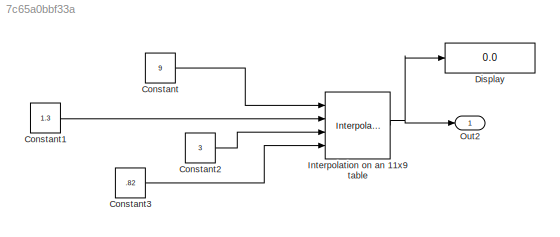
MODEL slx_7c65a0bbf33a
KIND model
CONFIG AbsTol = auto
CONFIG EnableMultiTasking = on
CONFIG FixedStep = 0.1
CONFIG MaxStep = auto
CONFIG MinStep = auto
CONFIG RelTol = 1e-3
CONFIG SampleTimeConstraint = Unconstrained
CONFIG Solver = FixedStepAuto
CONFIG SolverName = FixedStepAuto
CONFIG StartTime = 0.0
CONFIG StopTime = 10.0
BLOCK [Constant] Constant
  OutDataTypeStr = int32
  Value = 9
BLOCK [Constant] Constant1
  Value = 1.3
BLOCK [Constant] Constant2
  OutDataTypeStr = int32
  Value = 3
BLOCK [Constant] Constant3
  Value = .82
BLOCK [Display] Display
  Decimation = 1
  Ports = [1]
BLOCK [Interpolation_n-D] Interpolation on an 11x9 table
  ExtrapMethod = Clip
  InputPortMap = u0,u1,u2,u3
  InterpMethod = Flat
  Ports = [4, 1]
  Table = reshape([1:99], [11,9])
BLOCK [Outport] Out2
  IconDisplay = Port number
LINE Constant1:1 -> Interpolation on an 11x9 table:2
LINE Constant2:1 -> Interpolation on an 11x9 table:3
LINE Constant3:1 -> Interpolation on an 11x9 table:4
LINE Constant:1 -> Interpolation on an 11x9 table:1
NET Interpolation on an 11x9 table:1 -> Display:1, Out2:1
note: NET lines group one-source signal fan-out (src -> all destinations, sorted); 1:1 wires keep LINE
